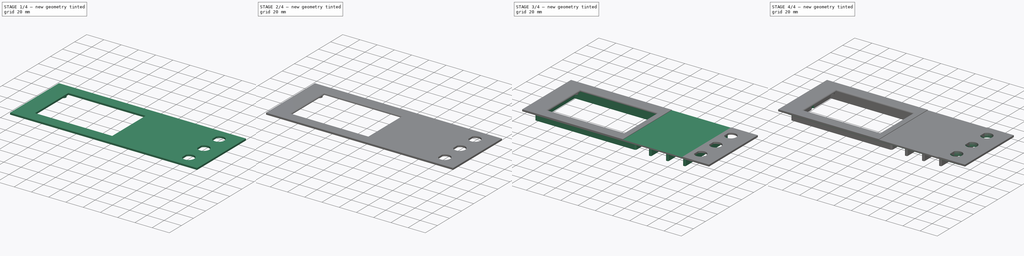
[diagram: build sequence overview — one tinted view per stage of 4, left to right]
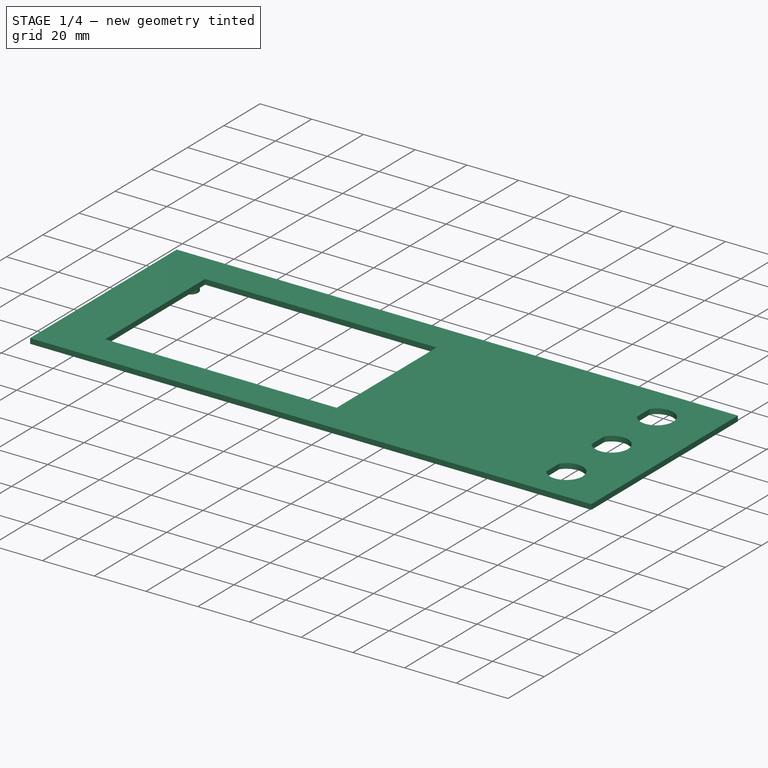
[diagram: stage 1 of 4 — iso view after this stage's code; geometry added in this stage tinted green]
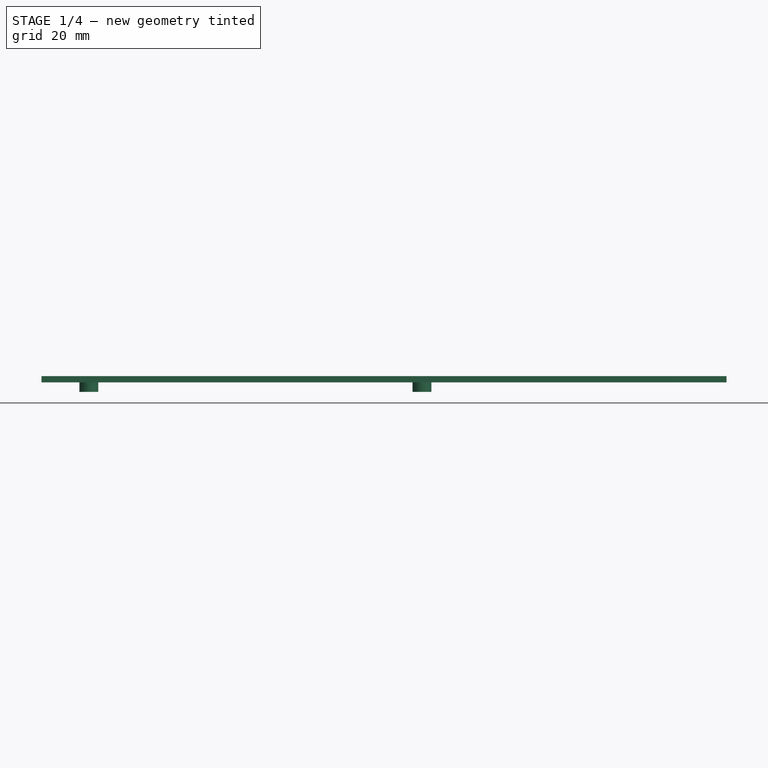
[diagram: stage 1 of 4 — front view after this stage's code; geometry added in this stage tinted green]
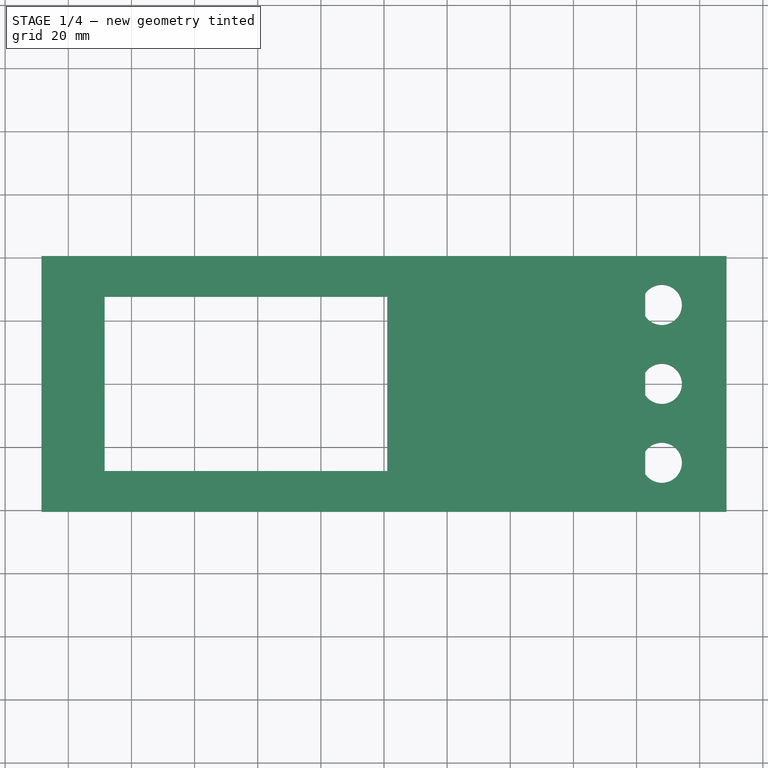
[diagram: stage 1 of 4 — top view after this stage's code; geometry added in this stage tinted green]
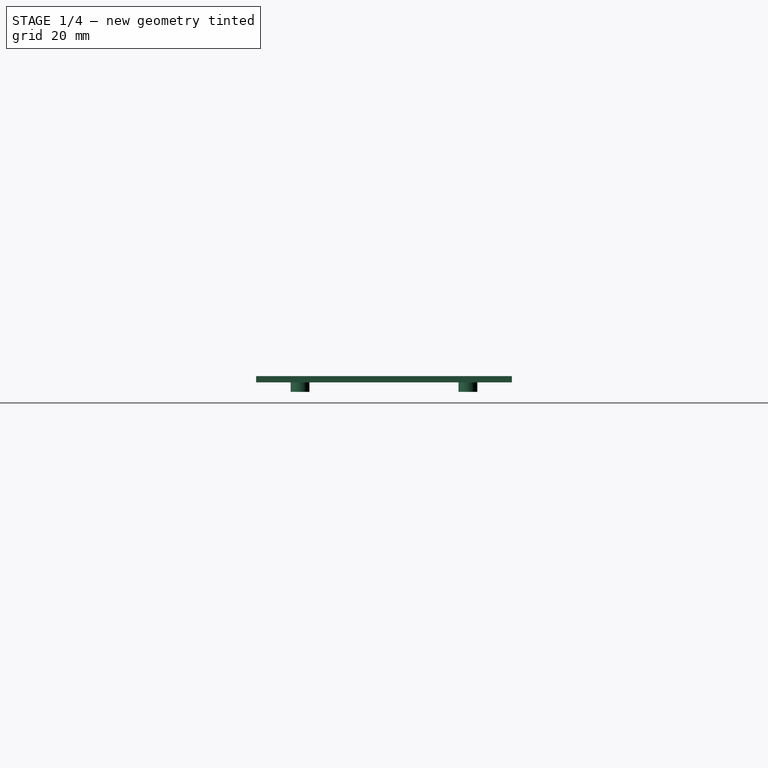
[diagram: stage 1 of 4 — right view after this stage's code; geometry added in this stage tinted green]
FCSTD DOCUMENT  (FreeCAD 1.0R39109 (Git))
Label: frontpanel
License: All rights reserved
LicenseURL: https://en.wikipedia.org/wiki/All_rights_reserved
objects: PartDesign::Pad×5, Sketcher::SketchObject×2, PartDesign::Pocket×2, PartDesign::Hole×1, PartDesign::Fillet×1, PartDesign::Body×1
note: 32 computed .brp shape members not serialized (recipe doc carries the construction recipe); baked Part::Feature solids carry a one-line shape summary decoded from their .brp

FEATURE [Sketcher::SketchObject] Sketch
  ArcFitTolerance = 1e-06
  AttachmentSupport = -> [XY_Plane]
  FullyConstrained = false
  MakeInternals = false
  MapMode = 5
  sketch-geometry (91):
    g0: LineSegment StartX=-108.5 StartY=40.5 StartZ=0 EndX=-108.5 EndY=-40.5 EndZ=0
    g1: LineSegment StartX=-108.5 StartY=-40.5 StartZ=0 EndX=108.5 EndY=-40.5 EndZ=0
    g2: LineSegment StartX=108.5 StartY=-40.5 StartZ=0 EndX=108.5 EndY=40.5 EndZ=0
    g3: LineSegment StartX=108.5 StartY=40.5 StartZ=0 EndX=-108.5 EndY=40.5 EndZ=0
    g4: LineSegment [constr] StartX=-96.5 StartY=29.59 StartZ=0 EndX=-96.5 EndY=-29.59 EndZ=0
    g5: LineSegment [constr] StartX=-96.5 StartY=-29.59 StartZ=0 EndX=15.01 EndY=-29.59 EndZ=0
    g6: LineSegment [constr] StartX=15.01 StartY=-29.59 StartZ=0 EndX=15.01 EndY=29.59 EndZ=0
    g7: LineSegment [constr] StartX=15.01 StartY=29.59 StartZ=0 EndX=-96.5 EndY=29.59 EndZ=0
    g8: Circle CenterX=-93.5 CenterY=26.59 CenterZ=0 NormalX=0 NormalY=0 NormalZ=1 AngleXU=0 Radius=3
    g9: Circle CenterX=-93.5 CenterY=-26.59 CenterZ=0 NormalX=0 NormalY=0 NormalZ=1 AngleXU=0 Radius=3
    g10: Circle CenterX=12.01 CenterY=26.59 CenterZ=0 NormalX=0 NormalY=0 NormalZ=1 AngleXU=0 Radius=3
    g11: Circle CenterX=12.01 CenterY=-26.59 CenterZ=0 NormalX=0 NormalY=0 NormalZ=1 AngleXU=0 Radius=3
    g12: LineSegment StartX=-88.5 StartY=27.59 StartZ=0 EndX=-88.5 EndY=-27.59 EndZ=0
    g13: LineSegment StartX=-88.5 StartY=-27.59 StartZ=0 EndX=1.01 EndY=-27.59 EndZ=0
    g14: LineSegment StartX=1.01 StartY=-27.59 StartZ=0 EndX=1.01 EndY=27.59 EndZ=0
    g15: LineSegment StartX=1.01 StartY=27.59 StartZ=0 EndX=-88.5 EndY=27.59 EndZ=0
    g16: LineSegment [constr] StartX=-98.5 StartY=35.5 StartZ=0 EndX=-98.5 EndY=-35.5 EndZ=0
    g17: LineSegment [constr] StartX=-98.5 StartY=-35.5 StartZ=0 EndX=98.5 EndY=-35.5 EndZ=0
    g18: LineSegment [constr] StartX=98.5 StartY=-35.5 StartZ=0 EndX=98.5 EndY=35.5 EndZ=0
    g19: LineSegment [constr] StartX=98.5 StartY=35.5 StartZ=0 EndX=-98.5 EndY=35.5 EndZ=0
    g20: ArcOfCircle CenterX=88 CenterY=25 CenterZ=0 NormalX=0 NormalY=0 NormalZ=1 AngleXU=0 Radius=6.35 StartAngle=3.73904 EndAngle=8.82733
    g21: Circle [constr] CenterX=88 CenterY=25 CenterZ=0 NormalX=0 NormalY=0 NormalZ=1 AngleXU=0 Radius=10.5
    g22: ArcOfCircle CenterX=88 CenterY=0 CenterZ=0 NormalX=0 NormalY=0 NormalZ=1 AngleXU=0 Radius=6.35 StartAngle=3.73904 EndAngle=8.82733
    g23: Circle [constr] CenterX=88 CenterY=0 CenterZ=0 NormalX=0 NormalY=0 NormalZ=1 AngleXU=0 Radius=10.5
    g24: Circle [constr] CenterX=88 CenterY=-25 CenterZ=0 NormalX=0 NormalY=0 NormalZ=1 AngleXU=0 Radius=10.5
    g25: ArcOfCircle CenterX=88 CenterY=-25 CenterZ=0 NormalX=0 NormalY=0 NormalZ=1 AngleXU=0 Radius=6.35 StartAngle=3.73904 EndAngle=8.82733
    g26: LineSegment StartX=82.75 StartY=28.5721 StartZ=0 EndX=82.75 EndY=21.4279 EndZ=0
    g27: LineSegment [constr] StartX=94.35 StartY=28.3208 StartZ=0 EndX=94.35 EndY=23.3208 EndZ=0
    g28: LineSegment StartX=82.75 StartY=3.57211 StartZ=0 EndX=82.75 EndY=-3.57211 EndZ=0
    g29: LineSegment StartX=82.75 StartY=-21.4279 StartZ=0 EndX=82.75 EndY=-28.5721 EndZ=0
    g30: LineSegment StartX=18.01 StartY=-30.59 StartZ=0 EndX=18.01 EndY=30.59 EndZ=0
    g31: ArcOfCircle CenterX=16.01 CenterY=30.59 CenterZ=0 NormalX=0 NormalY=0 NormalZ=-1 AngleXU=0 Radius=2 StartAngle=1.5708 EndAngle=3.14159
    g32: LineSegment StartX=16.01 StartY=32.59 StartZ=0 EndX=-97.5 EndY=32.59 EndZ=0
    g33: ArcOfCircle CenterX=-97.5 CenterY=30.59 CenterZ=0 NormalX=0 NormalY=0 NormalZ=-1 AngleXU=-1.5708 Radius=2 StartAngle=1.5708 EndAngle=3.14159
    g34: LineSegment StartX=-99.5 StartY=30.59 StartZ=0 EndX=-99.5 EndY=-30.59 EndZ=0
    g35: ArcOfCircle CenterX=-97.5 CenterY=-30.59 CenterZ=0 NormalX=0 NormalY=0 NormalZ=-1 AngleXU=-3.14159 Radius=2 StartAngle=1.5708 EndAngle=3.14159
    g36: LineSegment StartX=-97.5 StartY=-32.59 StartZ=0 EndX=16.01 EndY=-32.59 EndZ=0
    g37: ArcOfCircle CenterX=16.01 CenterY=-30.59 CenterZ=0 NormalX=0 NormalY=0 NormalZ=-1 AngleXU=1.5708 Radius=2 StartAngle=1.5708 EndAngle=3.14159
    g38: LineSegment StartX=15.11 StartY=-29.59 StartZ=0 EndX=15.11 EndY=29.59 EndZ=0
    g39: ArcOfCircle CenterX=15.01 CenterY=29.59 CenterZ=0 NormalX=0 NormalY=0 NormalZ=-1 AngleXU=0 Radius=0.1 StartAngle=1.5708 EndAngle=3.14159
    g40: LineSegment StartX=15.01 StartY=29.69 StartZ=0 EndX=-96.5 EndY=29.69 EndZ=0
    g41: ArcOfCircle CenterX=-96.5 CenterY=29.59 CenterZ=0 NormalX=0 NormalY=0 NormalZ=-1 AngleXU=-1.5708 Radius=0.1 StartAngle=1.5708 EndAngle=3.14159
    g42: LineSegment StartX=-96.6 StartY=29.59 StartZ=0 EndX=-96.6 EndY=-29.59 EndZ=0
    g43: ArcOfCircle CenterX=-96.5 CenterY=-29.59 CenterZ=0 NormalX=0 NormalY=0 NormalZ=-1 AngleXU=-3.14159 Radius=0.1 StartAngle=1.5708 EndAngle=3.14159
    g44: LineSegment StartX=-96.5 StartY=-29.69 StartZ=0 EndX=15.01 EndY=-29.69 EndZ=0
    g45: ArcOfCircle CenterX=15.01 CenterY=-29.59 CenterZ=0 NormalX=0 NormalY=0 NormalZ=-1 AngleXU=1.5708 Radius=0.1 StartAngle=1.5708 EndAngle=3.14159
    g46: LineSegment StartX=34.84 StartY=34.5 StartZ=0 EndX=34.84 EndY=-34.5 EndZ=0
    g47: LineSegment StartX=35.84 StartY=-35.5 StartZ=0 EndX=36.84 EndY=-35.5 EndZ=0
    g48: LineSegment StartX=37.84 StartY=-34.5 StartZ=0 EndX=37.84 EndY=34.5 EndZ=0
    g49: LineSegment StartX=36.84 StartY=35.5 StartZ=0 EndX=35.84 EndY=35.5 EndZ=0
    g50: ArcOfCircle CenterX=35.84 CenterY=34.5 CenterZ=0 NormalX=0 NormalY=0 NormalZ=1 AngleXU=0 Radius=1 StartAngle=1.5708 EndAngle=3.14159
    g51: ArcOfCircle CenterX=35.84 CenterY=-34.5 CenterZ=0 NormalX=0 NormalY=0 NormalZ=1 AngleXU=0 Radius=1 StartAngle=3.14159 EndAngle=4.71239
    g52: ArcOfCircle CenterX=36.84 CenterY=-34.5 CenterZ=0 NormalX=0 NormalY=0 NormalZ=1 AngleXU=0 Radius=1 StartAngle=4.71239 EndAngle=6.28319
    g53: ArcOfCircle CenterX=36.84 CenterY=34.5 CenterZ=0 NormalX=0 NormalY=0 NormalZ=1 AngleXU=0 Radius=1 StartAngle=5e-16 EndAngle=1.5708
    g54: GeomPoint [constr] X=34.84 Y=35.5 Z=0
    g55: GeomPoint [constr] X=37.84 Y=-35.5 Z=0
    g56: LineSegment StartX=54.67 StartY=34.5 StartZ=0 EndX=54.67 EndY=-34.5 EndZ=0
    g57: LineSegment StartX=55.67 StartY=-35.5 StartZ=0 EndX=56.67 EndY=-35.5 EndZ=0
    g58: LineSegment StartX=57.67 StartY=-34.5 StartZ=0 EndX=57.67 EndY=34.5 EndZ=0
    g59: LineSegment StartX=56.67 StartY=35.5 StartZ=0 EndX=55.67 EndY=35.5 EndZ=0
    g60: ArcOfCircle CenterX=55.67 CenterY=34.5 CenterZ=0 NormalX=0 NormalY=0 NormalZ=1 AngleXU=0 Radius=1 StartAngle=1.5708 EndAngle=3.14159
    g61: ArcOfCircle CenterX=55.67 CenterY=-34.5 CenterZ=0 NormalX=0 NormalY=0 NormalZ=1 AngleXU=0 Radius=1 StartAngle=3.14159 EndAngle=4.71239
    g62: ArcOfCircle CenterX=56.67 CenterY=-34.5 CenterZ=0 NormalX=0 NormalY=0 NormalZ=1 AngleXU=0 Radius=1 StartAngle=4.71239 EndAngle=6.28319
    g63: ArcOfCircle CenterX=56.67 CenterY=34.5 CenterZ=0 NormalX=0 NormalY=0 NormalZ=1 AngleXU=0 Radius=1 StartAngle=2.9e-15 EndAngle=1.5708
    g64: GeomPoint [constr] X=54.67 Y=35.5 Z=0
    g65: GeomPoint [constr] X=57.67 Y=-35.5 Z=0
    g66: LineSegment StartX=74.5 StartY=34.5 StartZ=0 EndX=74.5 EndY=-34.5 EndZ=0
    g67: LineSegment StartX=75.5 StartY=-35.5 StartZ=0 EndX=76.5 EndY=-35.5 EndZ=0
    g68: LineSegment StartX=77.5 StartY=-34.5 StartZ=0 EndX=77.5 EndY=34.5 EndZ=0
    g69: LineSegment StartX=76.5 StartY=35.5 StartZ=0 EndX=75.5 EndY=35.5 EndZ=0
    g70: ArcOfCircle CenterX=75.5 CenterY=34.5 CenterZ=0 NormalX=0 NormalY=0 NormalZ=1 AngleXU=0 Radius=1 StartAngle=1.5708 EndAngle=3.14159
    g71: ArcOfCircle CenterX=75.5 CenterY=-34.5 CenterZ=0 NormalX=0 NormalY=0 NormalZ=1 AngleXU=0 Radius=1 StartAngle=3.14159 EndAngle=4.71239
    g72: ArcOfCircle CenterX=76.5 CenterY=-34.5 CenterZ=0 NormalX=0 NormalY=0 NormalZ=1 AngleXU=0 Radius=1 StartAngle=4.71239 EndAngle=6.28319
    g73: ArcOfCircle CenterX=76.5 CenterY=34.5 CenterZ=0 NormalX=0 NormalY=0 NormalZ=1 AngleXU=0 Radius=1 StartAngle=-9e-16 EndAngle=1.5708
    g74: GeomPoint [constr] X=74.5 Y=35.5 Z=0
    g75: GeomPoint [constr] X=77.5 Y=-35.5 Z=0
    g76: LineSegment [constr] StartX=18.01 StartY=29.2155 StartZ=0 EndX=34.84 EndY=29.2155 EndZ=0
    g77: LineSegment [constr] StartX=37.84 StartY=29.2458 StartZ=0 EndX=54.67 EndY=29.2458 EndZ=0
    g78: LineSegment [constr] StartX=57.67 StartY=29.2458 StartZ=0 EndX=74.5 EndY=29.2458 EndZ=0
    g79: LineSegment StartX=-100.5 StartY=35.5 StartZ=0 EndX=-100.5 EndY=-35.5 EndZ=0
    g80: LineSegment StartX=-100.5 StartY=-35.5 StartZ=0 EndX=98.5 EndY=-35.5 EndZ=0
    g81: LineSegment StartX=98.5 StartY=-35.5 StartZ=0 EndX=98.5 EndY=35.5 EndZ=0
    g82: LineSegment StartX=98.5 StartY=35.5 StartZ=0 EndX=-100.5 EndY=35.5 EndZ=0
    g83: LineSegment StartX=8.5 StartY=40.5 StartZ=0 EndX=8.5 EndY=-40.5 EndZ=0
    g84: LineSegment StartX=8.5 StartY=-40.5 StartZ=0 EndX=77.5 EndY=-40.5 EndZ=0
    g85: LineSegment StartX=77.5 StartY=-40.5 StartZ=0 EndX=77.5 EndY=40.5 EndZ=0
    g86: LineSegment StartX=77.5 StartY=40.5 StartZ=0 EndX=8.5 EndY=40.5 EndZ=0
    g87: LineSegment StartX=-98.1 StartY=2 StartZ=0 EndX=-98.1 EndY=-2 EndZ=0
    g88: LineSegment StartX=-98.1 StartY=-2 StartZ=0 EndX=-96.4 EndY=-2 EndZ=0
    g89: LineSegment StartX=-96.4 StartY=-2 StartZ=0 EndX=-96.4 EndY=2 EndZ=0
    g90: LineSegment StartX=-96.4 StartY=2 StartZ=0 EndX=-98.1 EndY=2 EndZ=0
  constraints (243):
    c: Coincident(g0,g1)
    c: Coincident(g1,g2)
    c: Coincident(g2,g3)
    c: Coincident(g3,g0)
    c: Vertical(g0)
    c: Vertical(g2)
    c: Horizontal(g1)
    c: Horizontal(g3)
    c: Distance(g0,g2) = 217
    c: Distance(g1,g3) = 81
    c: Symmetric(g0,g1,g-1)
    c: Coincident(g4,g5)
    c: Coincident(g5,g6)
    c: Coincident(g6,g7)
    c: Coincident(g7,g4)
    c: Vertical(g6)
    c: Horizontal(g5)
    c: Horizontal(g7)
    c: DistanceX(g7,g7) = 111.51
    c: DistanceY(g4,g4) = 59.18
    c: Symmetric(g4,g4,g-1)
    c: DistanceX(g0,g4) = 12
    c: Distance(g8,g4) = 3
    c: Distance(g8,g7) = 3
    c: Horizontal(g10,g8)
    c: Distance(g10,g6) = 3
    c: Vertical(g8,g9)
    c: Vertical(g11,g10)
    c: Horizontal(g9,g11)
    c: Distance(g9,g5) = 3
    c: Coincident(g12,g13)
    c: Coincident(g13,g14)
    c: Coincident(g14,g15)
    c: Coincident(g15,g12)
    c: Vertical(g12)
    c: Vertical(g14)
    c: Horizontal(g13)
    c: Horizontal(g15)
    c: Distance(g12,g4) = 8
    c: Distance(g6,g14) = 14
    c: Distance(g7,g15) = 2
    c: Distance(g5,g13) = 2
    c: Coincident(g16,g17)
    c: Coincident(g17,g18)
    c: Coincident(g18,g19)
    c: Coincident(g19,g16)
    c: Vertical(g16)
    c: Vertical(g18)
    c: Horizontal(g17)
    c: Horizontal(g19)
    c: Distance(g16,g0) = 10
    c: Distance(g18,g2) = 10
    c: Distance(g1,g17) = 5
    c: Distance(g3,g19) = 5
    c: Diameter(g20) = 12.7
    c: Diameter(g21) = 21
    c: Coincident(g21,g20)
    c: Tangent(g21,g19)
    c: Tangent(g21,g18)
    c: Diameter(g22) = 12.7
    c: Diameter(g23) = 21
    c: Coincident(g23,g22)
    c: Diameter(g24) = 21
    c: Diameter(g25) = 12.7
    c: Coincident(g25,g24)
    c: Tangent(g24,g18)
    c: Tangent(g24,g17)
    c: Diameter(g9) = 6
    c: Equal(g11,g10)
    c: Equal(g10,g8)
    c: Equal(g9,g8)
    c: Vertical(g26)
    c: Vertical(g27)
    c: Tangent(g20,g27)
    c: Distance(g27,g26) = 11.6
    c: Coincident(g20,g26)
    c: Coincident(g26,g20)
    c: Coincident(g25,g29)
    c: Coincident(g25,g29)
    c: Vertical(g28,g20)
    c: Vertical(g20,g25)
    c: Vertical(g28)
    c: Vertical(g29)
    c: PointOnObject(g22,g-1)
    c: Tangent(g23,g18)
    c: Coincident(g28,g22)
    c: Coincident(g28,g22)
    c: DistanceY(g27,g27) = 5
    c: Tangent(g30,g31) = -1.5708
    c: Tangent(g30,g37) = -1.5708
    c: Tangent(g31,g32) = -1.5708
    c: Tangent(g32,g33) = -1.5708
    c: Tangent(g33,g34) = -1.5708
    c: Tangent(g34,g35) = -1.5708
    c: Tangent(g35,g36) = -1.5708
    c: Tangent(g36,g37) = -1.5708
    c: Tangent(g38,g39) = -1.5708
    c: Tangent(g38,g45) = -1.5708
    c: Tangent(g39,g40) = -1.5708
    c: Tangent(g40,g41) = -1.5708
    c: Tangent(g41,g42) = -1.5708
    c: Tangent(g42,g43) = -1.5708
    c: Tangent(g43,g44) = -1.5708
    c: Tangent(g44,g45) = -1.5708
    c: Tangent(g46,g50) = -1.5708
    c: Tangent(g46,g51) = -1.5708
    c: Tangent(g47,g51) = -1.5708
    c: Tangent(g47,g52) = -1.5708
    c: Tangent(g48,g52) = -1.5708
    c: Tangent(g48,g53) = -1.5708
    c: Tangent(g49,g53) = -1.5708
    c: Tangent(g49,g50) = -1.5708
    c: Vertical(g46)
    c: Vertical(g48)
    c: Horizontal(g47)
    c: Horizontal(g49)
    c: Equal(g50,g51)
    c: Equal(g51,g52)
    c: Equal(g52,g53)
    c: PointOnObject(g54,g46)
    c: PointOnObject(g54,g49)
    c: PointOnObject(g55,g47)
    c: PointOnObject(g55,g48)
    c: Radius(g51) = 1
    c: Tangent(g56,g60) = -1.5708
    c: Tangent(g56,g61) = -1.5708
    c: Tangent(g57,g61) = -1.5708
    c: Tangent(g57,g62) = -1.5708
    c: Tangent(g58,g62) = -1.5708
    c: Tangent(g58,g63) = -1.5708
    c: Tangent(g59,g63) = -1.5708
    c: Tangent(g59,g60) = -1.5708
    c: Vertical(g56)
    c: Vertical(g58)
    c: Horizontal(g57)
    c: Horizontal(g59)
    c: Equal(g60,g61)
    c: Equal(g61,g62)
    c: Equal(g62,g63)
    c: PointOnObject(g64,g56)
    c: PointOnObject(g64,g59)
    c: PointOnObject(g65,g57)
    c: PointOnObject(g65,g58)
    c: Distance(g56,g58) = 3
    c: Radius(g61) = 1
    c: Tangent(g66,g70) = -1.5708
    c: Tangent(g66,g71) = -1.5708
    c: Tangent(g67,g71) = -1.5708
    c: Tangent(g67,g72) = -1.5708
    c: Tangent(g68,g72) = -1.5708
    c: Tangent(g68,g73) = -1.5708
    c: Tangent(g69,g73) = -1.5708
    c: Tangent(g69,g70) = -1.5708
    c: Vertical(g66)
    c: Vertical(g68)
    c: Horizontal(g67)
    c: Horizontal(g69)
    c: Equal(g70,g71)
    c: Equal(g71,g72)
    c: Equal(g72,g73)
    c: PointOnObject(g74,g66)
    c: PointOnObject(g74,g69)
    c: PointOnObject(g75,g67)
    c: PointOnObject(g75,g68)
    c: Distance(g66,g68) = 3
    c: Radius(g71) = 1
    c: PointOnObject(g49,g19)
    c: PointOnObject(g47,g17)
    c: PointOnObject(g57,g17)
    c: PointOnObject(g67,g17)
    c: Distance(g48,g46) = 3
    c: PointOnObject(g59,g19)
    c: PointOnObject(g69,g19)
    c: Tangent(g68,g21)
    c: PointOnObject(g76,g30)
    c: PointOnObject(g76,g46)
    c: Horizontal(g76)
    c: PointOnObject(g77,g48)
    c: PointOnObject(g77,g56)
    c: Horizontal(g77)
    c: PointOnObject(g78,g58)
    c: PointOnObject(g78,g66)
    c: Horizontal(g78)
    c: Equal(g76,g77)
    c: Equal(g77,g78)
    c: Vertical(g30)
    c: Vertical(g34)
    c: Horizontal(g32)
    c: Horizontal(g36)
    c: Vertical(g42)
    c: Vertical(g38)
    c: Horizontal(g40)
    c: Distance(g38,g6) = 0.1
    c: Distance(g40,g7) = 0.1
    c: Distance(g32,g7) = 3
    c: Distance(g30,g6) = 3
    c: Distance(g42,g4) = 0.1
    c: Distance(g34,g4) = 3
    c: Distance(g44,g5) = 0.1
    c: Distance(g36,g5) = 3
    c: Equal(g35,g33)
    c: Equal(g33,g31)
    c: Equal(g31,g37)
    c: Distance(g33,g33) = 2
    c: Radius(g41) = 0.1
    c: Radius(g39) = 0.1
    c: Radius(g45) = 0.1
    c: Radius(g43) = 0.1
    c: Horizontal(g44)
    c: Coincident(g79,g80)
    c: Coincident(g80,g81)
    c: Coincident(g81,g82)
    c: Coincident(g82,g79)
    c: Vertical(g79)
    c: Vertical(g81)
    c: Horizontal(g80)
    c: Horizontal(g82)
    c: PointOnObject(g79,g19)
    c: Coincident(g80,g17)
    c: Coincident(g83,g84)
    c: Coincident(g84,g85)
    c: Coincident(g85,g86)
    c: Coincident(g86,g83)
    c: Vertical(g83)
    c: Vertical(g85)
    c: Horizontal(g84)
    c: Horizontal(g86)
    c: Distance(g83,g85) = 69
    c: PointOnObject(g83,g3)
    c: PointOnObject(g84,g1)
    c: Tangent(g23,g85)
    c: Distance(g34,g79) = 1
    c: Coincident(g87,g88)
    c: Coincident(g88,g89)
    c: Coincident(g89,g90)
    c: Coincident(g90,g87)
    c: Vertical(g89)
    c: Horizontal(g88)
    c: Horizontal(g90)
    c: Distance(g87,g89) = 1.7
    c: Distance(g88,g90) = 4
    c: Symmetric(g87,g87,g-1)
    c: Distance(g89,g42) = 0.2
FEATURE [PartDesign::Pad] Pad
  Direction = (0,0,1)
  Length = 2
  Length2 = 10
  Profile = -> Sketch [Edge12,Edge4,Edge1,Edge2,Edge3,Edge11,Edge10,Edge9,Edge17,Edge18,Edge16,Edge15,Edge13,Edge14]
  ReferenceAxis = -> Sketch [N_Axis]
  Refine = true
  Suppressed = false
  Type = 0
FEATURE [PartDesign::Pad] Pad001
  BaseFeature = -> Pad
  Direction = (0,0,1)
  Length = 3
  Length2 = 10
  Profile = -> Sketch [Edge8,Edge7,Edge5,Edge6]
  ReferenceAxis = -> Sketch [N_Axis]
  Refine = true
  Reversed = true
  Suppressed = false
  Type = 0
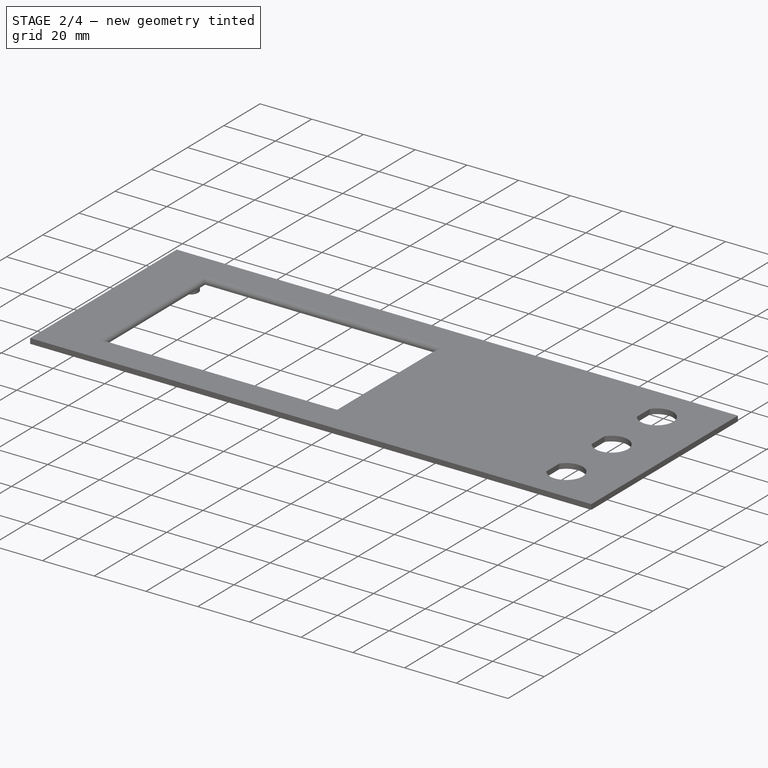
[diagram: stage 2 of 4 — iso view after this stage's code; geometry added in this stage tinted green]
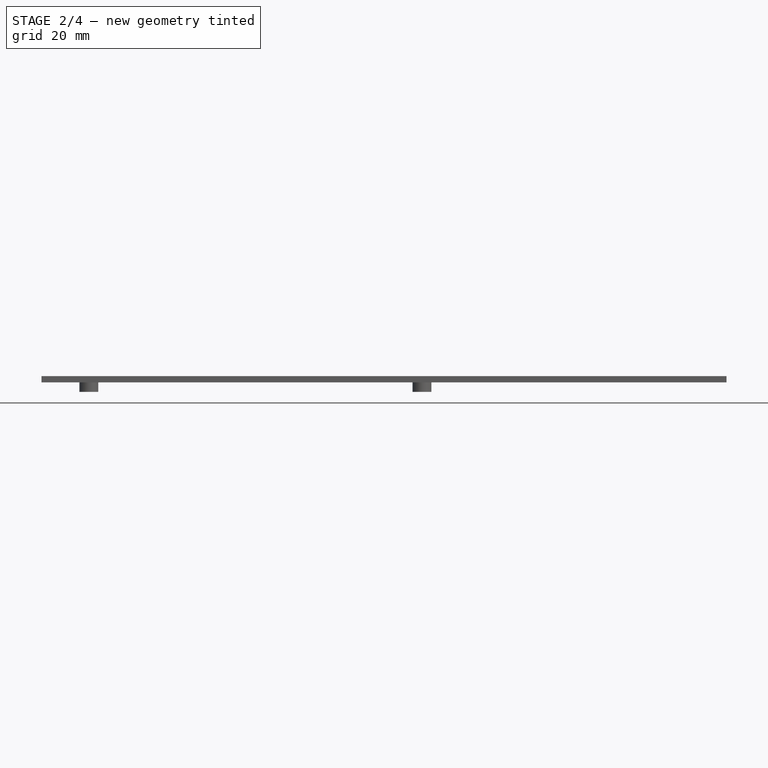
[diagram: stage 2 of 4 — front view after this stage's code; geometry added in this stage tinted green]
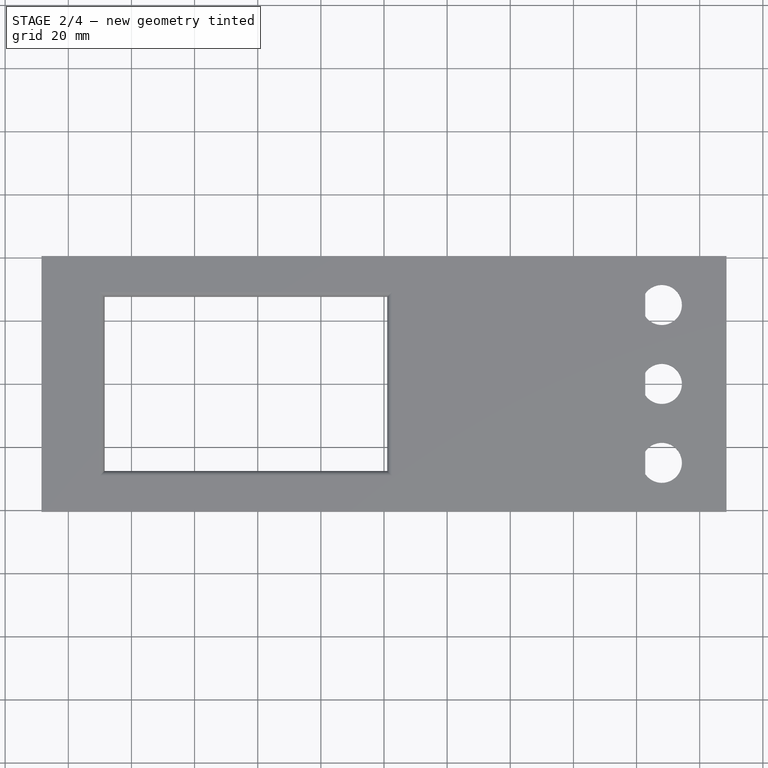
[diagram: stage 2 of 4 — top view after this stage's code; geometry added in this stage tinted green]
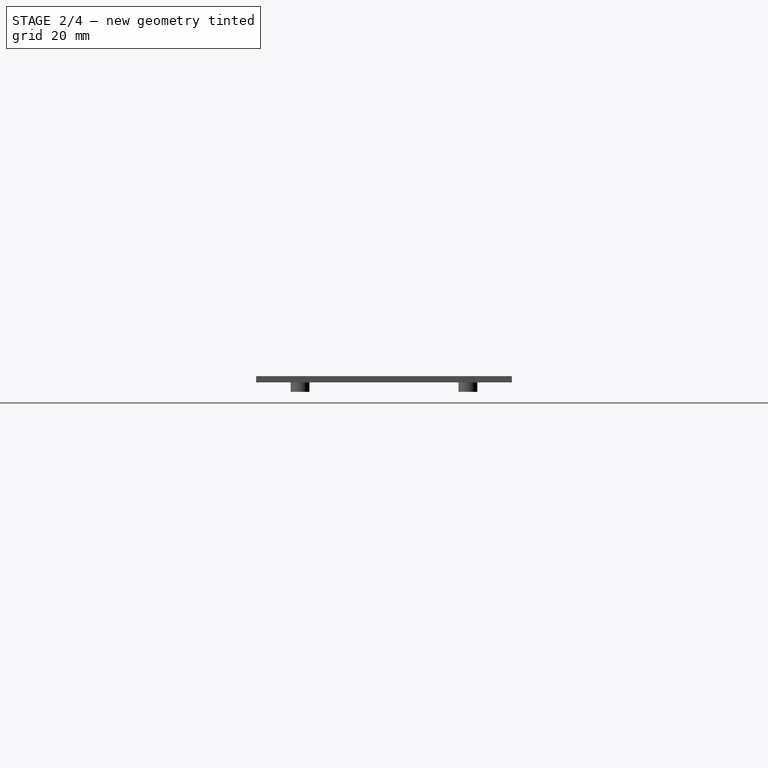
[diagram: stage 2 of 4 — right view after this stage's code; geometry added in this stage tinted green]
FEATURE [PartDesign::Hole] Hole
  BaseFeature = -> Pad001
  CustomThreadClearance = 0
  Depth = 25
  DepthType = 0
  Diameter = 2.52
  DrillForDepth = false
  DrillPoint = 1
  DrillPointAngle = 118
  HoleCutCountersinkAngle = 90
  HoleCutCustomValues = false
  HoleCutDepth = 0
  HoleCutDiameter = 6.1
  HoleCutType = 0
  ModelThread = true
  Profile = -> Sketch [Edge5,Edge6,Edge8,Edge7]
  Refine = true
  Suppressed = false
  Tapered = false
  TaperedAngle = 90
  ThreadClass = 0
  ThreadDepth = 4
  ThreadDepthType = 1
  ThreadDirection = 0
  ThreadFit = 0
  ThreadSize = 9
  ThreadType = 1
  Threaded = true
  UseCustomThreadClearance = false
FEATURE [PartDesign::Fillet] Fillet
  Base = -> Hole [Edge28,Edge27,Edge29,Edge30]
  BaseFeature = -> Hole
  Radius = 1.6
  Refine = true
  SupportTransform = false
  Suppressed = false
  UseAllEdges = false
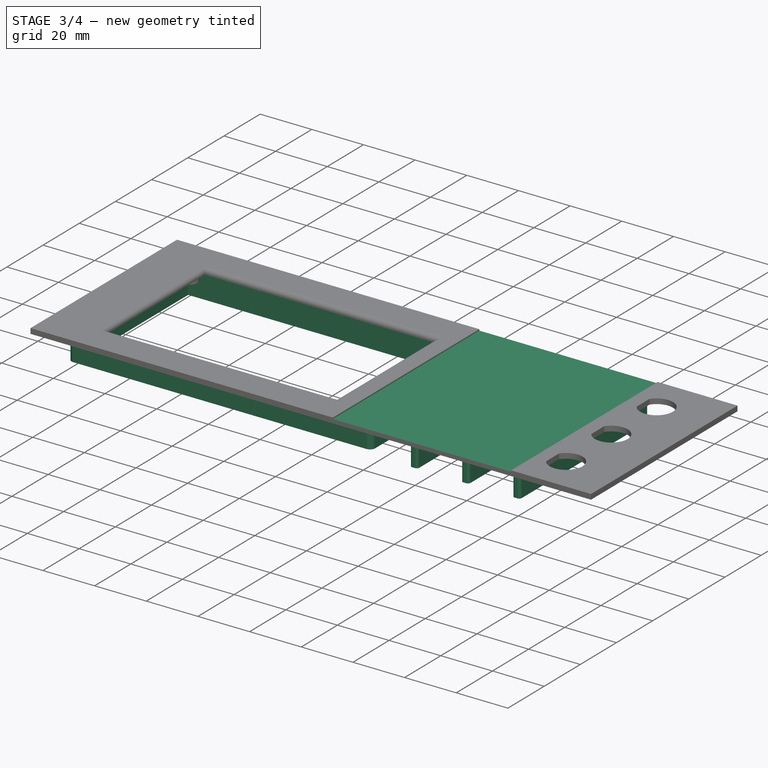
[diagram: stage 3 of 4 — iso view after this stage's code; geometry added in this stage tinted green]
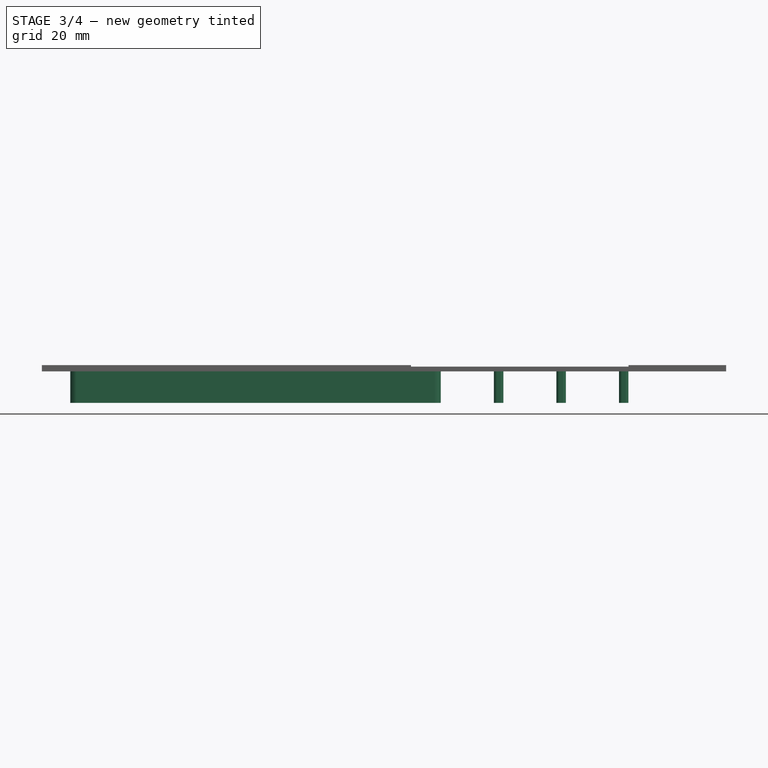
[diagram: stage 3 of 4 — front view after this stage's code; geometry added in this stage tinted green]
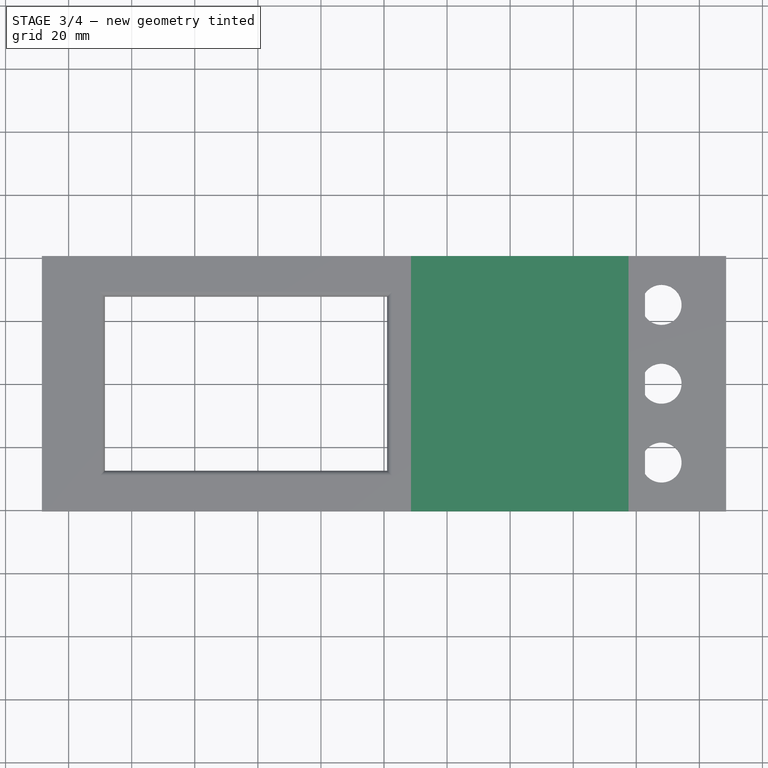
[diagram: stage 3 of 4 — top view after this stage's code; geometry added in this stage tinted green]
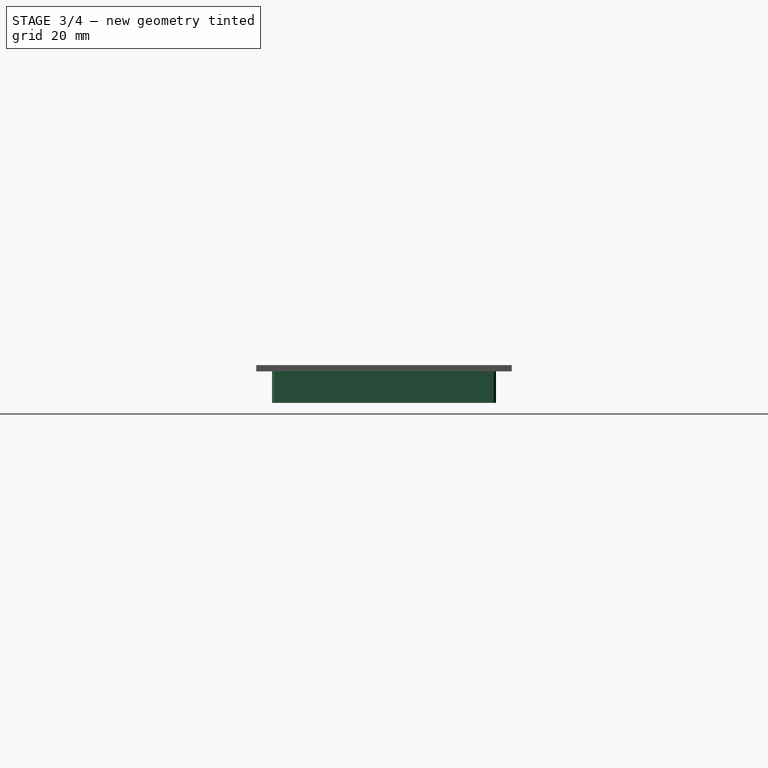
[diagram: stage 3 of 4 — right view after this stage's code; geometry added in this stage tinted green]
FEATURE [PartDesign::Pad] Pad002
  BaseFeature = -> Fillet
  Direction = (0,0,1)
  Length = 10
  Length2 = 10
  Profile = -> Sketch [Edge35,Edge39,Edge43,Edge47,Edge51,Edge55,Edge54,Edge53,Edge52,Edge46,Edge45,Edge44,Edge38,Edge37,Edge36,Edge42,Edge41,Edge40,Edge50,Edge49,Edge48,Edge58,Edge57,Edge56]
  ReferenceAxis = -> Sketch [N_Axis]
  Refine = true
  Reversed = true
  Suppressed = false
  Type = 0
FEATURE [PartDesign::Pad] Pad003
  BaseFeature = -> Pad002
  Direction = (0,0,1)
  Length = 10
  Length2 = 10
  Profile = -> Sketch [Edge31,Edge23,Edge22,Edge21,Edge30,Edge29,Edge32,Edge33,Edge24,Edge25,Edge26,Edge19,Edge34,Edge27,Edge20,Edge28]
  ReferenceAxis = -> Sketch [N_Axis]
  Refine = true
  Reversed = true
  Suppressed = false
  Type = 0
FEATURE [Sketcher::SketchObject] Sketch001
  ArcFitTolerance = 1e-06
  FullyConstrained = false
  MakeInternals = false
  MapMode = 5
  Placement = pos=(0,0,2) rot=(0,0,1;0rad)
  sketch-geometry (4):
    g0: LineSegment StartX=8.54706 StartY=49.6001 StartZ=0 EndX=8.54706 EndY=-45.1489 EndZ=0
    g1: LineSegment StartX=8.54706 StartY=-45.1489 StartZ=0 EndX=77.5471 EndY=-45.1489 EndZ=0
    g2: LineSegment StartX=77.5471 StartY=-45.1489 StartZ=0 EndX=77.5471 EndY=49.6001 EndZ=0
    g3: LineSegment StartX=77.5471 StartY=49.6001 StartZ=0 EndX=8.54706 EndY=49.6001 EndZ=0
  constraints (9):
    c: Coincident(g0,g1)
    c: Coincident(g1,g2)
    c: Coincident(g2,g3)
    c: Coincident(g3,g0)
    c: Vertical(g0)
    c: Vertical(g2)
    c: Horizontal(g1)
    c: Horizontal(g3)
    c: Distance(g0,g2) = 69
FEATURE [PartDesign::Pocket] Pocket
  BaseFeature = -> Pad003
  Direction = (0,0,-1)
  Length = 0.5
  Length2 = 5
  Profile = -> Sketch001
  ReferenceAxis = -> Sketch001 [N_Axis]
  Refine = true
  Suppressed = false
  Type = 0
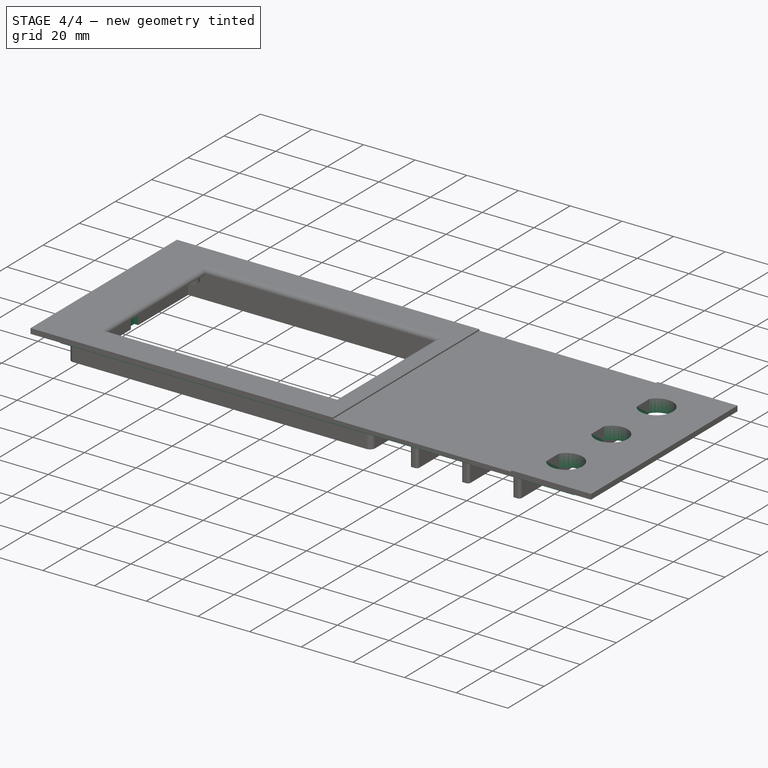
[diagram: stage 4 of 4 — iso view after this stage's code; geometry added in this stage tinted green]
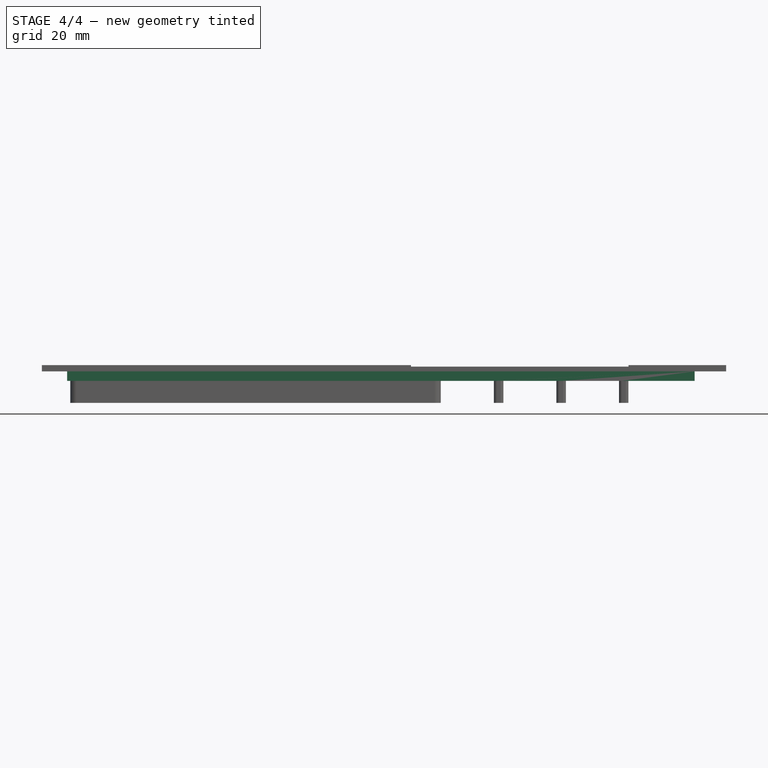
[diagram: stage 4 of 4 — front view after this stage's code; geometry added in this stage tinted green]
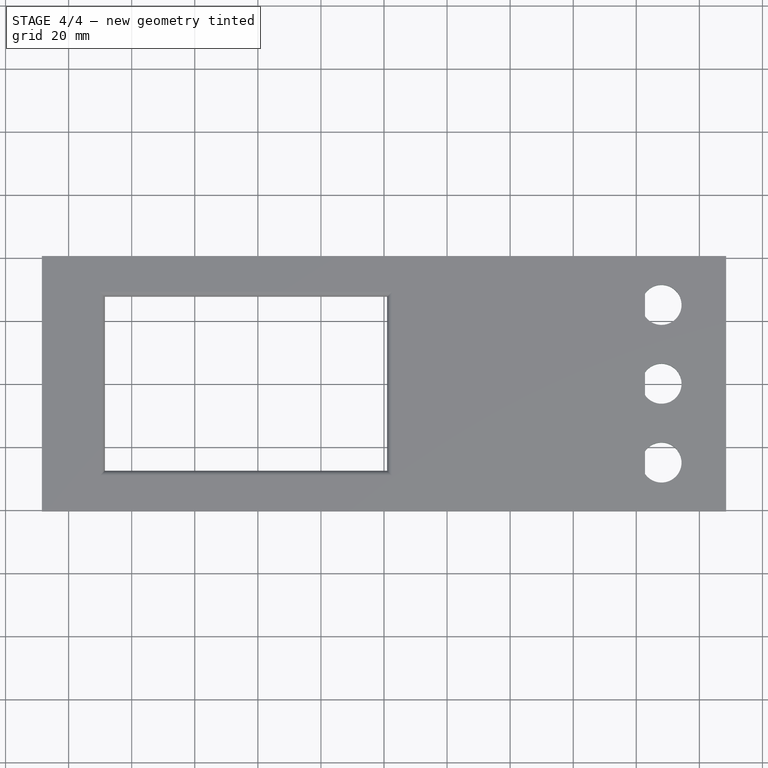
[diagram: stage 4 of 4 — top view after this stage's code; geometry added in this stage tinted green]
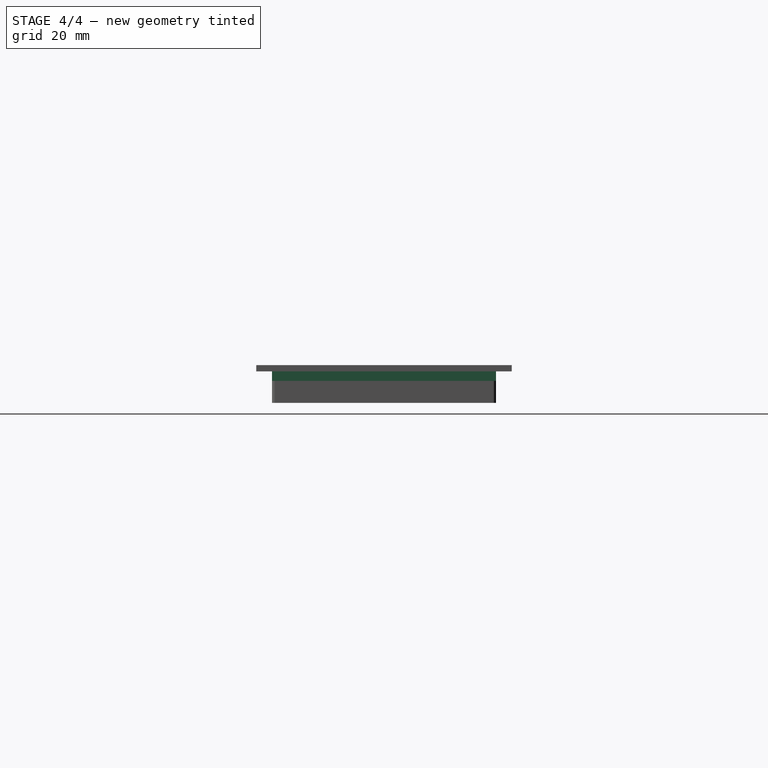
[diagram: stage 4 of 4 — right view after this stage's code; geometry added in this stage tinted green]
FEATURE [PartDesign::Pad] Pad004
  BaseFeature = -> Pocket
  Direction = (0,0,1)
  Length = 3
  Length2 = 10
  Profile = -> Sketch [Edge59,Edge62,Edge21,Edge22,Edge23,Edge60,Edge25,Edge24,Edge26,Edge19,Edge20,Edge61,Edge17,Edge15,Edge13,Edge14,Edge16,Edge18]
  ReferenceAxis = -> Sketch [N_Axis]
  Refine = true
  Reversed = true
  Suppressed = false
  Type = 0
FEATURE [PartDesign::Pocket] Pocket001
  BaseFeature = -> Pad004
  Direction = (0,0,-1)
  Length = 10
  Length2 = -4
  Profile = -> Sketch [Edge70,Edge67,Edge68,Edge69]
  ReferenceAxis = -> Sketch [N_Axis]
  Refine = true
  Suppressed = false
  Type = 4
  UpToShape = -> [Pad004]
FEATURE [PartDesign::Body] Body  label="front panel"
  AllowCompound = false
  Group = -> [Sketch,Pad,Pad001,Hole,Fillet,Pad002,Pad003,Sketch001,Pocket,Pad004,Pocket001]
  Origin = -> Origin
  Tip = -> Pocket001
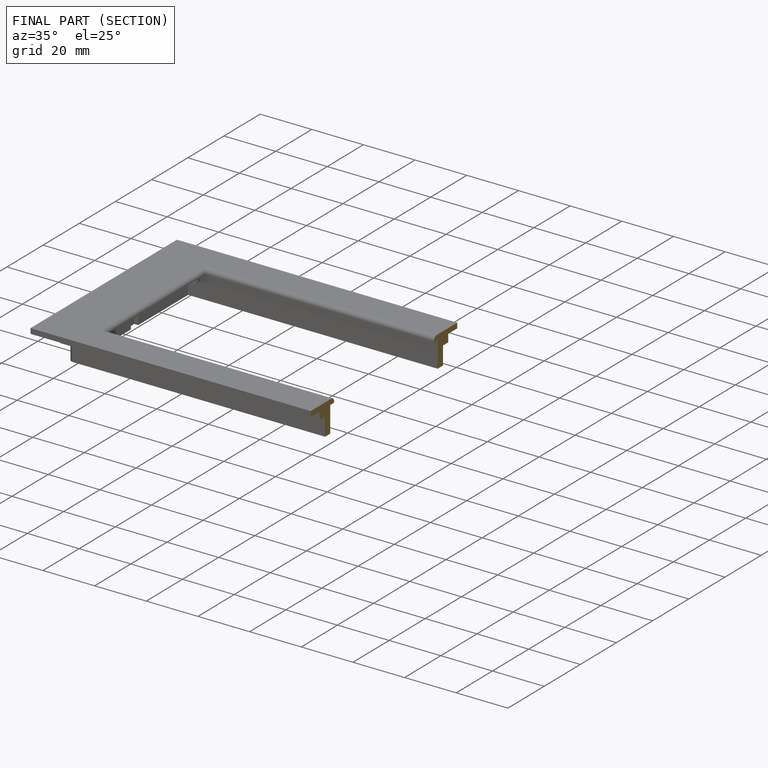
[diagram: finished part — half-section view (interior)]
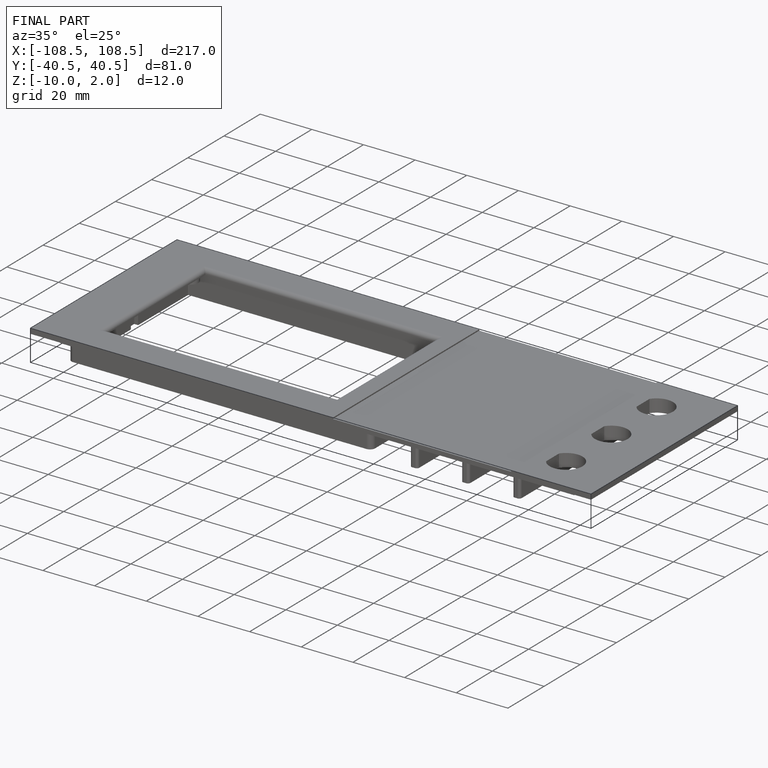
[diagram: finished part — iso view with bounding-box wireframe]
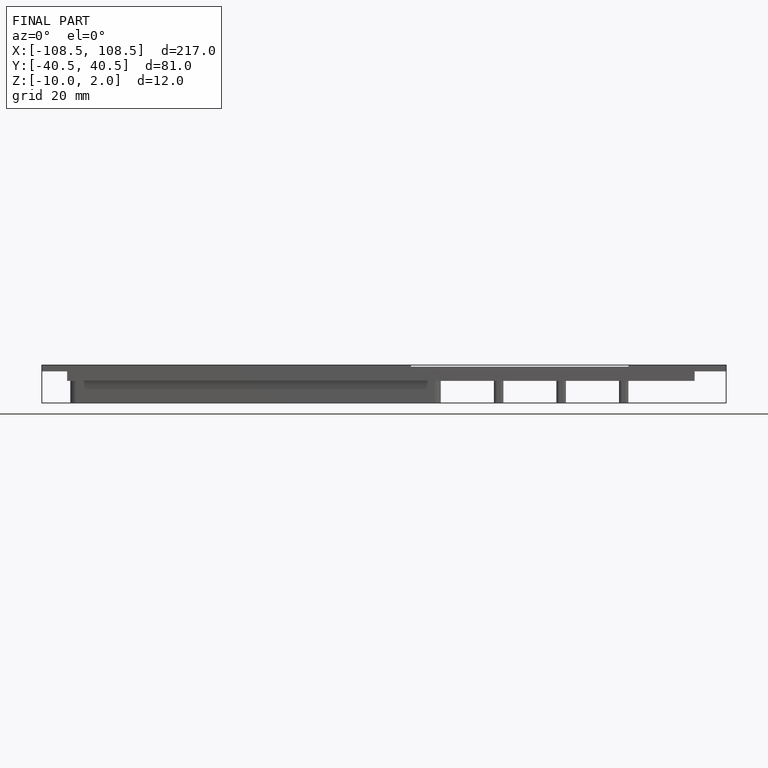
[diagram: finished part — front view with bounding-box wireframe]
